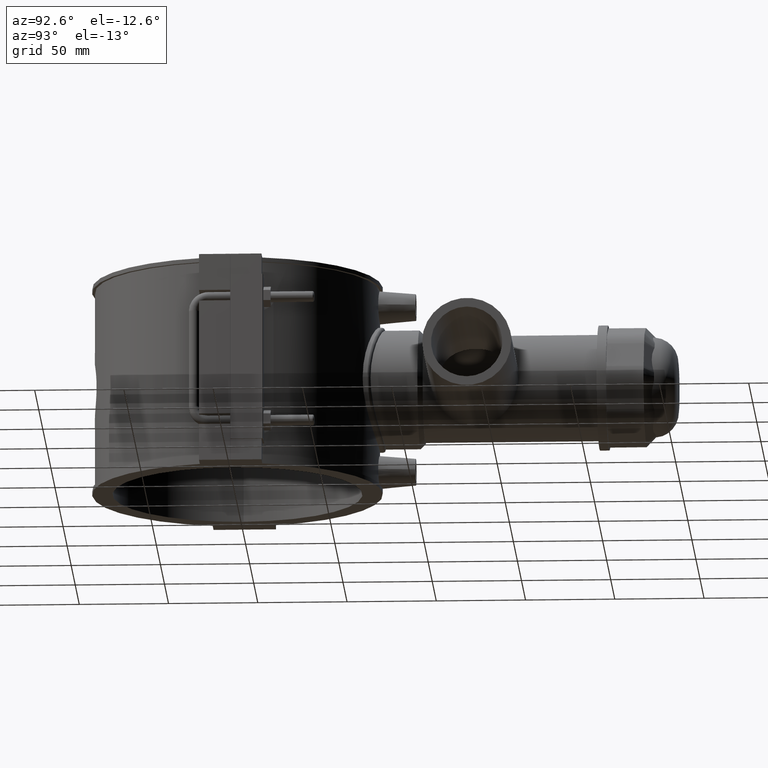
[diagram: clean part render]
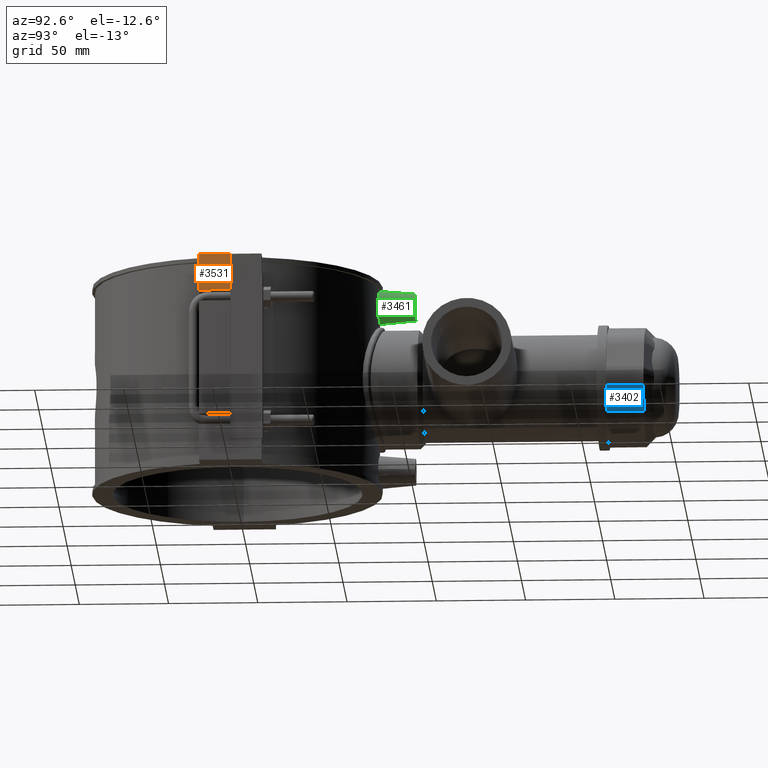
[diagram: same view with three faces highlighted in distinct colors, each labeled with its STEP entity id]
A machine part, auxiliary view with three faces highlighted in distinct colors.
Their STEP definitions:

[orange] entity #3531 — the highlighted planar face has unit normal (1, 0, 0).
#150=LINE('',#6396,#437);
#302=LINE('',#7265,#589);
#315=LINE('',#7288,#602);
#316=LINE('',#7290,#603);
#437=VECTOR('',#4225,20.6);
#589=VECTOR('',#4671,17.45);
#602=VECTOR('',#4690,20.6);
#603=VECTOR('',#4693,17.45);
#1015=FACE_OUTER_BOUND('',#1275,.T.);
#1275=EDGE_LOOP('',(#3124,#3125,#3126,#3127));
#1571=VERTEX_POINT('',#6393);
#1572=VERTEX_POINT('',#6395);
#1720=VERTEX_POINT('',#7263);
#1727=VERTEX_POINT('',#7286);
#1964=EDGE_CURVE('',#1571,#1572,#150,.T.);
#2192=EDGE_CURVE('',#1571,#1720,#302,.T.);
#2205=EDGE_CURVE('',#1720,#1727,#315,.T.);
#2206=EDGE_CURVE('',#1572,#1727,#316,.T.);
#3124=ORIENTED_EDGE('',*,*,#2192,.T.);
#3125=ORIENTED_EDGE('',*,*,#2205,.T.);
#3126=ORIENTED_EDGE('',*,*,#2206,.F.);
#3127=ORIENTED_EDGE('',*,*,#1964,.F.);
#3326=PLANE('',#3830);
#3531=ADVANCED_FACE('',(#1015),#3326,.T.);
#3830=AXIS2_PLACEMENT_3D('',#7289,#4691,#4692);
#4225=DIRECTION('',(0.,0.,1.));
#4671=DIRECTION('',(0.,1.,0.));
#4690=DIRECTION('',(0.,0.,1.));
#4691=DIRECTION('center_axis',(1.,0.,0.));
#4692=DIRECTION('ref_axis',(0.,1.,0.));
#4693=DIRECTION('',(0.,1.,0.));
#6393=CARTESIAN_POINT('',(90.,-17.5,38.4));
#6395=CARTESIAN_POINT('',(90.,-17.5,59.));
#6396=CARTESIAN_POINT('',(90.,-17.5,0.));
#7263=CARTESIAN_POINT('',(90.,-0.0500000000000078,38.4));
#7265=CARTESIAN_POINT('',(90.,-17.5,38.4));
#7286=CARTESIAN_POINT('',(90.,-0.0500000000000078,59.));
#7288=CARTESIAN_POINT('',(90.,-0.0500000000000078,-29.5));
#7289=CARTESIAN_POINT('Origin',(90.,-17.5,0.));
#7290=CARTESIAN_POINT('',(90.,-17.5,59.));

[blue] entity #3402 — the highlighted planar face has unit normal (0.9239, 0, -0.3827).
#57=LINE('',#5258,#344);
#102=LINE('',#5712,#389);
#103=LINE('',#5716,#390);
#104=LINE('',#5717,#391);
#344=VECTOR('',#3916,15.1898605191096);
#389=VECTOR('',#4081,20.95);
#390=VECTOR('',#4086,20.95);
#391=VECTOR('',#4087,15.1898605191096);
#886=FACE_OUTER_BOUND('',#1102,.T.);
#1102=EDGE_LOOP('',(#2486,#2487,#2488,#2489));
#1437=VERTEX_POINT('',#5204);
#1443=VERTEX_POINT('',#5240);
#1497=VERTEX_POINT('',#5711);
#1498=VERTEX_POINT('',#5715);
#1780=EDGE_CURVE('',#1443,#1437,#57,.T.);
#1875=EDGE_CURVE('',#1437,#1497,#102,.T.);
#1877=EDGE_CURVE('',#1498,#1443,#103,.T.);
#1878=EDGE_CURVE('',#1497,#1498,#104,.T.);
#2486=ORIENTED_EDGE('',*,*,#1780,.F.);
#2487=ORIENTED_EDGE('',*,*,#1877,.F.);
#2488=ORIENTED_EDGE('',*,*,#1878,.F.);
#2489=ORIENTED_EDGE('',*,*,#1875,.F.);
#3247=PLANE('',#3633);
#3402=ADVANCED_FACE('',(#886),#3247,.T.);
#3633=AXIS2_PLACEMENT_3D('',#5714,#4084,#4085);
#3916=DIRECTION('',(-0.382683432365089,2.82856528071925E-16,-0.923879532511287));
#4081=DIRECTION('',(-2.27753888853756E-32,-1.,-3.34530478229802E-16));
#4084=DIRECTION('center_axis',(0.923879532511287,1.28019271639715E-16,-0.382683432365089));
#4085=DIRECTION('ref_axis',(0.382683432365089,0.,0.923879532511287));
#4086=DIRECTION('',(2.27753888853756E-32,1.,3.34530478229802E-16));
#4087=DIRECTION('',(0.382683432365089,-2.82856528071925E-16,0.923879532511287));
#5204=CARTESIAN_POINT('',(26.9679146904647,229.01,-19.3911692884178));
#5240=CARTESIAN_POINT('',(32.7808226510645,229.01,-5.35756805311118));
#5258=CARTESIAN_POINT('',(32.2613004744527,229.01,-6.61180553784097));
#5711=CARTESIAN_POINT('',(26.9679146904647,208.06,-19.3911692884179));
#5712=CARTESIAN_POINT('',(26.9679146904647,234.61,-19.3911692884178));
#5714=CARTESIAN_POINT('Origin',(24.7487373415292,234.61,-24.7487373415291));
#5715=CARTESIAN_POINT('',(32.7808226510645,208.06,-5.35756805311119));
#5716=CARTESIAN_POINT('',(32.7808226510645,234.61,-5.35756805311118));
#5717=CARTESIAN_POINT('',(32.6325315345757,208.06,-5.71557447771805));

[green] entity #3461 — the highlighted conical surface has half-angle 5 deg.
#624=CONICAL_SURFACE('',#3723,7.5,5.);
#658=FACE_BOUND('',#1181,.T.);
#743=B_SPLINE_CURVE_WITH_KNOTS('',3,(#6320,#6321,#6322,#6323,#6324,#6325,
#6326,#6327,#6328,#6329,#6330,#6331,#6332,#6333,#6334,#6335,#6336,#6337,
#6338,#6339,#6340,#6341,#6342,#6343,#6344,#6345,#6346,#6347,#6348,#6349,
#6350,#6351,#6352,#6353),.UNSPECIFIED.,.T.,.F.,(4,2,2,2,2,2,2,2,2,2,2,2,
2,2,2,2,4),(0.,0.350537332806521,0.701074665613042,1.05119542431548,1.40131618301793,
1.75143694172037,2.10155770042281,2.45209503322933,2.80263236603585,3.15316969884237,
3.50370703164889,3.85382779035134,4.20394854905378,4.55406930775622,4.90419006645866,
5.25472739926518,5.6052647320717),.UNSPECIFIED.);
#945=FACE_OUTER_BOUND('',#1180,.T.);
#1180=EDGE_LOOP('',(#2811));
#1181=EDGE_LOOP('',(#2812));
#1366=CIRCLE('',#3724,7.5);
#1562=VERTEX_POINT('',#6319);
#1646=VERTEX_POINT('',#6788);
#1954=EDGE_CURVE('',#1562,#1562,#743,.T.);
#2072=EDGE_CURVE('',#1646,#1646,#1366,.T.);
#2811=ORIENTED_EDGE('',*,*,#2072,.F.);
#2812=ORIENTED_EDGE('',*,*,#1954,.F.);
#3461=ADVANCED_FACE('',(#945,#658),#624,.T.);
#3723=AXIS2_PLACEMENT_3D('',#6787,#4398,#4399);
#3724=AXIS2_PLACEMENT_3D('',#6789,#4400,#4401);
#4398=DIRECTION('center_axis',(0.,-1.,0.));
#4399=DIRECTION('ref_axis',(1.,0.,0.));
#4400=DIRECTION('center_axis',(0.,1.,0.));
#4401=DIRECTION('ref_axis',(1.,0.,0.));
#6319=CARTESIAN_POINT('',(9.31499881409953,79.2544686253925,47.2));
#6320=CARTESIAN_POINT('Ctrl Pts',(-9.31499881409953,79.2544686253925,47.2));
#6321=CARTESIAN_POINT('Ctrl Pts',(-9.31499881409953,79.2544686253925,46.0315422239783));
#6322=CARTESIAN_POINT('Ctrl Pts',(-9.07927705901611,79.2832740529761,44.7866598084205));
#6323=CARTESIAN_POINT('Ctrl Pts',(-8.12401078667296,79.3868456523369,42.5000799802729));
#6324=CARTESIAN_POINT('Ctrl Pts',(-7.40456259486849,79.4600721276288,41.4582728460423));
#6325=CARTESIAN_POINT('Ctrl Pts',(-5.74914170471667,79.5969618701621,39.8164661855734));
#6326=CARTESIAN_POINT('Ctrl Pts',(-4.7028960366599,79.6695522189689,39.1061335180734));
#6327=CARTESIAN_POINT('Ctrl Pts',(-2.41189717008598,79.7717840700412,38.1642510778672));
#6328=CARTESIAN_POINT('Ctrl Pts',(-1.16706919567481,79.8,37.9327289967764));
#6329=CARTESIAN_POINT('Ctrl Pts',(1.16706919567481,79.8,37.9327289967763));
#6330=CARTESIAN_POINT('Ctrl Pts',(2.41189717008597,79.7717840700413,38.1642510778672));
#6331=CARTESIAN_POINT('Ctrl Pts',(4.70289603665989,79.6695522189689,39.1061335180735));
#6332=CARTESIAN_POINT('Ctrl Pts',(5.74914170471667,79.5969618701621,39.8164661855734));
#6333=CARTESIAN_POINT('Ctrl Pts',(7.40456259486849,79.4600721276288,41.4582728460423));
#6334=CARTESIAN_POINT('Ctrl Pts',(8.12401078667296,79.3868456523369,42.5000799802729));
#6335=CARTESIAN_POINT('Ctrl Pts',(9.07927705901611,79.2832740529761,44.7866598084205));
#6336=CARTESIAN_POINT('Ctrl Pts',(9.31499881409953,79.2544686253925,46.0315422239783));
#6337=CARTESIAN_POINT('Ctrl Pts',(9.31499881409953,79.2544686253925,48.3684577760217));
#6338=CARTESIAN_POINT('Ctrl Pts',(9.07927705901611,79.2832740529761,49.6133401915795));
#6339=CARTESIAN_POINT('Ctrl Pts',(8.12401078667296,79.3868456523369,51.8999200197271));
#6340=CARTESIAN_POINT('Ctrl Pts',(7.40456259486848,79.4600721276288,52.9417271539577));
#6341=CARTESIAN_POINT('Ctrl Pts',(5.74914170471666,79.5969618701621,54.5835338144267));
#6342=CARTESIAN_POINT('Ctrl Pts',(4.70289603665989,79.6695522189689,55.2938664819266));
#6343=CARTESIAN_POINT('Ctrl Pts',(2.41189717008597,79.7717840700413,56.2357489221328));
#6344=CARTESIAN_POINT('Ctrl Pts',(1.16706919567481,79.8,56.4672710032237));
#6345=CARTESIAN_POINT('Ctrl Pts',(-1.16706919567481,79.8,56.4672710032237));
#6346=CARTESIAN_POINT('Ctrl Pts',(-2.41189717008598,79.7717840700413,56.2357489221328));
#6347=CARTESIAN_POINT('Ctrl Pts',(-4.7028960366599,79.6695522189689,55.2938664819266));
#6348=CARTESIAN_POINT('Ctrl Pts',(-5.74914170471667,79.5969618701621,54.5835338144267));
#6349=CARTESIAN_POINT('Ctrl Pts',(-7.40456259486849,79.4600721276288,52.9417271539577));
#6350=CARTESIAN_POINT('Ctrl Pts',(-8.12401078667296,79.3868456523369,51.8999200197271));
#6351=CARTESIAN_POINT('Ctrl Pts',(-9.07927705901611,79.2832740529761,49.6133401915795));
#6352=CARTESIAN_POINT('Ctrl Pts',(-9.31499881409953,79.2544686253925,48.3684577760217));
#6353=CARTESIAN_POINT('Ctrl Pts',(-9.31499881409953,79.2544686253925,47.2));
#6787=CARTESIAN_POINT('Origin',(0.,100.,47.2));
#6788=CARTESIAN_POINT('',(-7.5,100.,47.2));
#6789=CARTESIAN_POINT('Origin',(0.,100.,47.2));